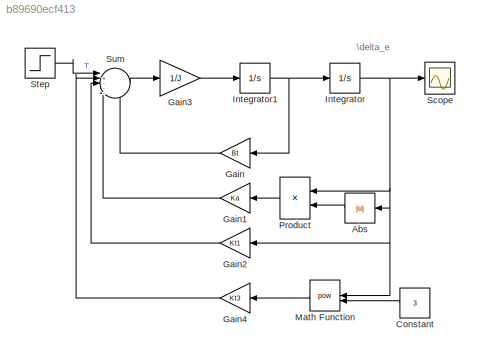
MODEL slx_b89690ecf413
KIND model
CONFIG AbsTol = auto
CONFIG EnableMultiTasking = on
CONFIG FixedStep = auto
CONFIG MaxStep = auto
CONFIG MinStep = auto
CONFIG RelTol = 1e-3
CONFIG SampleTimeConstraint = Unconstrained
CONFIG SolverName = ode45
CONFIG StartTime = 0.0
CONFIG StopTime = 15
BLOCK [Abs] Abs
  SaturateOnIntegerOverflow = off
BLOCK [Constant] Constant
  Value = 3
BLOCK [Gain] Gain
  Gain = Bt
BLOCK [Gain] Gain1
  Gain = Ka
BLOCK [Gain] Gain2
  Gain = Kt1
BLOCK [Gain] Gain3
  Gain = 1/J
BLOCK [Gain] Gain4
  Gain = Kt3
BLOCK [Integrator] Integrator
  InitialCondition = current_d
BLOCK [Integrator] Integrator1
BLOCK [Math] Math Function
  Operator = pow
BLOCK [Product] Product
BLOCK [Scope] Scope
  Floating = off
  NumInputPorts = 1
  ScopeSpecificationString = Simulink.scopes.TimeScopeBlockCfg('CurrentConfiguration', extmgr.ConfigurationSet(extmgr.Configuration('Core','General UI',true),extmgr.Configuration('Core','Source UI',true),extmgr.Configuration('Sources','WiredSimulink',true,'SampleTime','0.01','DataLogging',true,'DataLoggingSaveFormat','StructureWithTime'),extmgr.Configuration('Visuals','Time Domain',true,'SerializedDisplays',{struct('MinYLimRe...<+1440ch>
BLOCK [Step] Step
  After = current_T
  SampleTime = 0
  Time = 0
BLOCK [Sum] Sum
  Inputs = |+----
ANNOTATION (root): \delta_e
LINE Abs:1 -> Product:2
LINE Constant:1 -> Math Function:2
LINE Gain1:1 -> Sum:4
LINE Gain2:1 -> Sum:3
LINE Gain3:1 -> Integrator1:1
LINE Gain4:1 -> Sum:2
LINE Gain:1 -> Sum:5
NET Integrator1:1 -> Gain:1, Integrator:1
NET Integrator:1 -> Abs:1, Gain2:1, Math Function:1, Product:1, Scope:1
LINE Math Function:1 -> Gain4:1
LINE Product:1 -> Gain1:1
LINE Step:1 -> Sum:1
LINE Sum:1 -> Gain3:1
note: NET lines group one-source signal fan-out (src -> all destinations, sorted); 1:1 wires keep LINE
